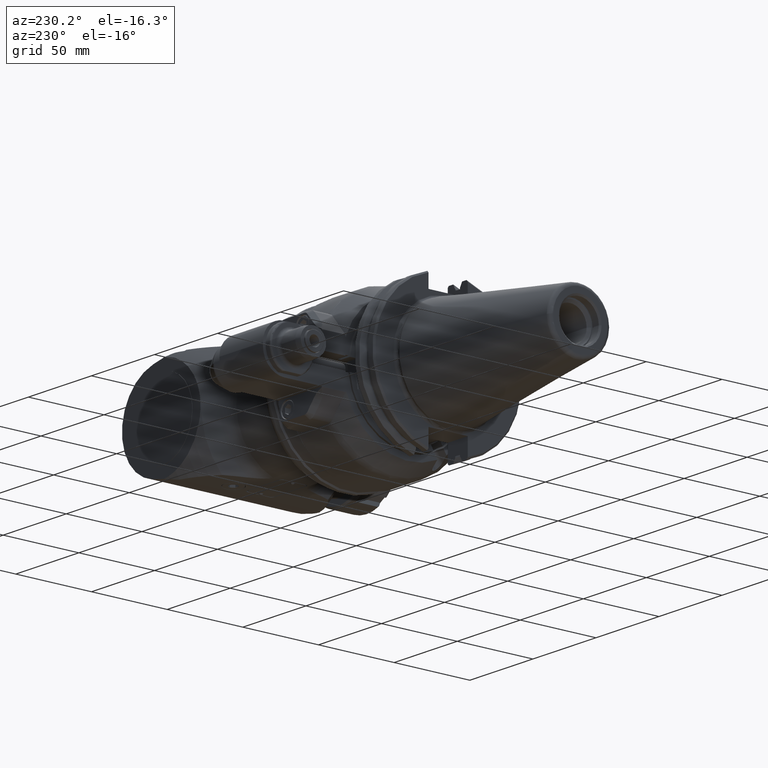
[diagram: clean part render]
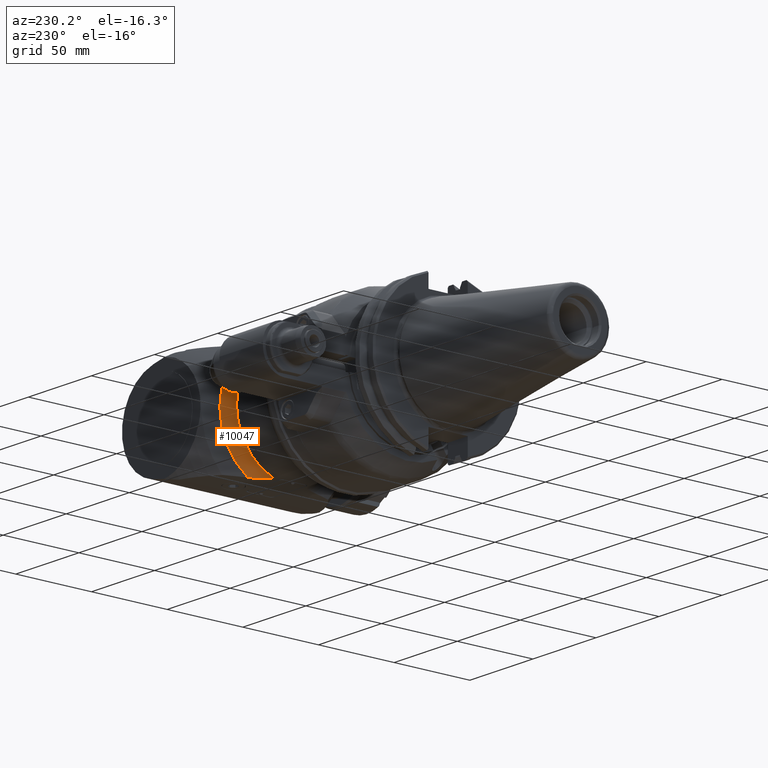
[diagram: same view with one face highlighted and labeled with its STEP entity id]
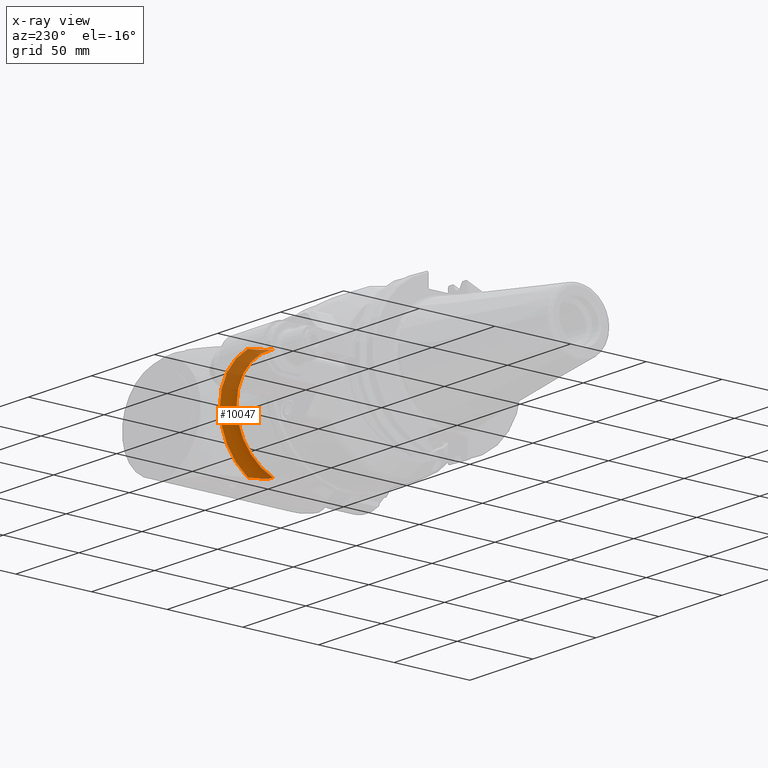
[diagram: x-ray of the same camera — body ghosted, the highlighted face saturated]
A machine part, auxiliary view. The second image highlights one B-rep face of the part: STEP entity #10047.
The next image is the same camera in x-ray: the body ghosted, the highlighted face saturated — about 31% of this face is hidden behind the body in this view.
In plain terms, the highlighted toroidal blend (fillet) surface has major radius 45 mm and minor (blend) radius 9 mm.
Its self-contained STEP definition (entity closure, byte-faithful):
#332=B_SPLINE_CURVE_WITH_KNOTS('',3,(#14453,#14454,#14455,#14456,#14457,
#14458,#14459,#14460,#14461,#14462),.UNSPECIFIED.,.F.,.F.,(4,2,2,2,4),(3.59989156653282,
3.7097236309896,3.85021130199603,4.32170904660403,4.87230947985028),
 .UNSPECIFIED.);
#341=B_SPLINE_CURVE_WITH_KNOTS('',3,(#14701,#14702,#14703,#14704,#14705,
#14706,#14707,#14708,#14709,#14710),.UNSPECIFIED.,.F.,.F.,(4,2,2,2,4),(2.32747365321535,
2.87807408645728,3.34957183106157,3.49005950206689,3.59989156652281),
 .UNSPECIFIED.);
#527=TOROIDAL_SURFACE('',#10677,45.,9.);
#2322=FACE_OUTER_BOUND('',#2856,.T.);
#2856=EDGE_LOOP('',(#6810,#6811,#6812,#6813));
#3460=CIRCLE('',#10676,36.);
#3461=CIRCLE('',#10678,40.5);
#3913=VERTEX_POINT('',#14450);
#3914=VERTEX_POINT('',#14452);
#3972=VERTEX_POINT('',#14696);
#3973=VERTEX_POINT('',#14700);
#5061=EDGE_CURVE('',#3913,#3914,#332,.T.);
#5132=EDGE_CURVE('',#3972,#3973,#341,.T.);
#5156=EDGE_CURVE('',#3913,#3973,#3460,.T.);
#5157=EDGE_CURVE('',#3972,#3914,#3461,.T.);
#6810=ORIENTED_EDGE('',*,*,#5156,.T.);
#6811=ORIENTED_EDGE('',*,*,#5132,.F.);
#6812=ORIENTED_EDGE('',*,*,#5157,.T.);
#6813=ORIENTED_EDGE('',*,*,#5061,.F.);
#10047=ADVANCED_FACE('',(#2322),#527,.F.);
#10676=AXIS2_PLACEMENT_3D('',#14828,#11767,#11768);
#10677=AXIS2_PLACEMENT_3D('',#14829,#11769,#11770);
#10678=AXIS2_PLACEMENT_3D('',#14830,#11771,#11772);
#11767=DIRECTION('center_axis',(1.,0.,0.));
#11768=DIRECTION('ref_axis',(0.,1.,0.));
#11769=DIRECTION('center_axis',(-1.,0.,0.));
#11770=DIRECTION('ref_axis',(0.,0.,1.));
#11771=DIRECTION('center_axis',(-1.,0.,0.));
#11772=DIRECTION('ref_axis',(0.,0.543350150238618,0.839506172839528));
#14450=CARTESIAN_POINT('',(233.8669445005,11.8321595662,-34.));
#14452=CARTESIAN_POINT('',(241.6611731346,22.00568108467,-34.));
#14453=CARTESIAN_POINT('Ctrl Pts',(233.8669445005,11.8321595661992,-34.));
#14454=CARTESIAN_POINT('Ctrl Pts',(234.233051382023,11.8321595661992,-34.));
#14455=CARTESIAN_POINT('Ctrl Pts',(234.663546023658,11.9198161783188,-34.));
#14456=CARTESIAN_POINT('Ctrl Pts',(235.443066222336,12.2174235510846,-34.));
#14457=CARTESIAN_POINT('Ctrl Pts',(235.920003028459,12.5146101157905,-34.));
#14458=CARTESIAN_POINT('Ctrl Pts',(237.519070508123,13.7812532581953,-34.));
#14459=CARTESIAN_POINT('Ctrl Pts',(238.591879803817,15.3323954779161,-34.));
#14460=CARTESIAN_POINT('Ctrl Pts',(240.279862271911,18.291841845134,-34.));
#14461=CARTESIAN_POINT('Ctrl Pts',(241.066668194067,20.1105628780451,-34.));
#14462=CARTESIAN_POINT('Ctrl Pts',(241.661173134565,22.0056810846811,-34.));
#14696=CARTESIAN_POINT('',(241.6611731346,22.00568108467,34.));
#14700=CARTESIAN_POINT('',(233.8669445006,11.8321595662,34.));
#14701=CARTESIAN_POINT('Ctrl Pts',(241.661173134565,22.005681084681,34.));
#14702=CARTESIAN_POINT('Ctrl Pts',(241.066668194067,20.1105628780451,34.));
#14703=CARTESIAN_POINT('Ctrl Pts',(240.279862271911,18.291841845134,34.));
#14704=CARTESIAN_POINT('Ctrl Pts',(238.591879803817,15.3323954779161,34.));
#14705=CARTESIAN_POINT('Ctrl Pts',(237.519070508123,13.7812532581953,34.));
#14706=CARTESIAN_POINT('Ctrl Pts',(235.920003028459,12.5146101157905,34.));
#14707=CARTESIAN_POINT('Ctrl Pts',(235.443066222336,12.2174235510846,34.));
#14708=CARTESIAN_POINT('Ctrl Pts',(234.663546023658,11.9198161783188,34.));
#14709=CARTESIAN_POINT('Ctrl Pts',(234.233051382023,11.8321595661992,34.));
#14710=CARTESIAN_POINT('Ctrl Pts',(233.8669445005,11.8321595661992,34.));
#14828=CARTESIAN_POINT('Origin',(233.8669445005,0.,0.));
#14829=CARTESIAN_POINT('Origin',(233.8669445005,0.,0.));
#14830=CARTESIAN_POINT('Origin',(241.6611731346,0.,0.));